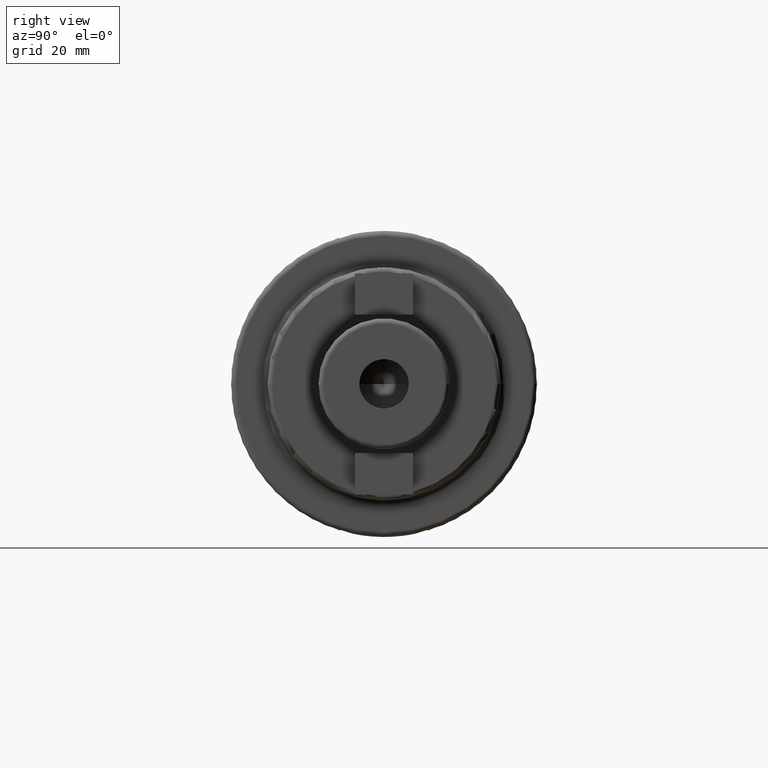
[diagram: clean part render]
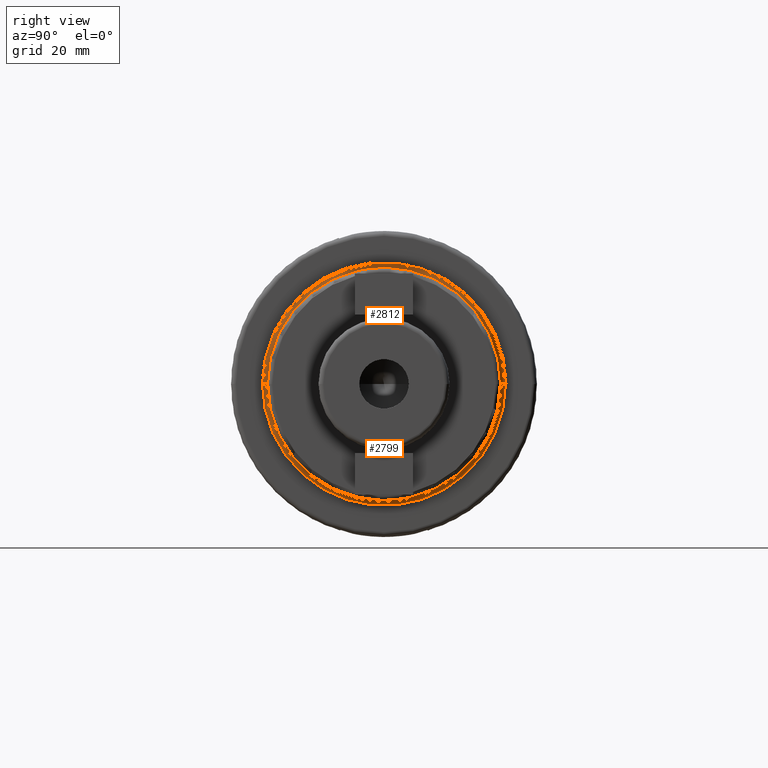
[diagram: same view with one multi-face feature highlighted, each face labeled with its STEP entity id]
A machine part, right view. The highlighted faces form ONE feature: a constant-radius fillet chain: 2 tangent blend faces with common blend radius 1 mm. The faces share edges in the B-rep.
Their STEP definitions:
[1] entity #2812 (Torus):
#841=CARTESIAN_POINT('',(2.7E1,0.E0,0.E0));
#842=DIRECTION('',(1.E0,0.E0,0.E0));
#843=DIRECTION('',(0.E0,1.E0,0.E0));
#844=AXIS2_PLACEMENT_3D('',#841,#842,#843);
#846=CARTESIAN_POINT('',(2.8E1,-2.5E1,1.590394482776E-14));
#847=DIRECTION('',(0.E0,0.E0,-1.E0));
#848=DIRECTION('',(-1.E0,4.973799150321E-14,0.E0));
#849=AXIS2_PLACEMENT_3D('',#846,#847,#848);
#851=CARTESIAN_POINT('',(2.8E1,2.5E1,-1.848521336001E-14));
#852=DIRECTION('',(0.E0,0.E0,1.E0));
#853=DIRECTION('',(-1.E0,-5.329070518201E-14,0.E0));
#854=AXIS2_PLACEMENT_3D('',#851,#852,#853);
#856=CARTESIAN_POINT('',(2.8E1,0.E0,0.E0));
#857=DIRECTION('',(1.E0,0.E0,0.E0));
#858=DIRECTION('',(0.E0,1.E0,0.E0));
#859=AXIS2_PLACEMENT_3D('',#856,#857,#858);
#1599=CARTESIAN_POINT('',(2.7E1,-2.5E1,0.E0));
#1600=CARTESIAN_POINT('',(2.7E1,2.5E1,0.E0));
#1601=VERTEX_POINT('',#1599);
#1602=VERTEX_POINT('',#1600);
#1603=CARTESIAN_POINT('',(2.8E1,-2.4E1,0.E0));
#1604=CARTESIAN_POINT('',(2.8E1,2.4E1,0.E0));
#1605=VERTEX_POINT('',#1603);
#1606=VERTEX_POINT('',#1604);
#2800=CARTESIAN_POINT('',(2.8E1,0.E0,0.E0));
#2801=DIRECTION('',(1.E0,0.E0,0.E0));
#2802=DIRECTION('',(0.E0,9.999794752457E-1,-6.406956165907E-3));
#2803=AXIS2_PLACEMENT_3D('',#2800,#2801,#2802);
#2804=TOROIDAL_SURFACE('',#2803,2.5E1,1.E0);
#2806=ORIENTED_EDGE('',*,*,#2805,.T.);
#2807=ORIENTED_EDGE('',*,*,#2791,.F.);
#2808=ORIENTED_EDGE('',*,*,#2780,.F.);
#2809=ORIENTED_EDGE('',*,*,#2795,.T.);
#2810=EDGE_LOOP('',(#2806,#2807,#2808,#2809));
#2811=FACE_OUTER_BOUND('',#2810,.F.);
#2812=ADVANCED_FACE('',(#2811),#2804,.F.);
#845=CIRCLE('',#844,2.5E1);
#850=CIRCLE('',#849,1.E0);
#855=CIRCLE('',#854,1.E0);
#860=CIRCLE('',#859,2.4E1);
#2780=EDGE_CURVE('',#1602,#1601,#845,.T.);
#2791=EDGE_CURVE('',#1601,#1605,#850,.T.);
#2795=EDGE_CURVE('',#1602,#1606,#855,.T.);
#2805=EDGE_CURVE('',#1606,#1605,#860,.T.);
[2] entity #2799 (Torus):
#836=CARTESIAN_POINT('',(2.7E1,0.E0,0.E0));
#837=DIRECTION('',(1.E0,0.E0,0.E0));
#838=DIRECTION('',(0.E0,-1.E0,0.E0));
#839=AXIS2_PLACEMENT_3D('',#836,#837,#838);
#846=CARTESIAN_POINT('',(2.8E1,-2.5E1,1.590394482776E-14));
#847=DIRECTION('',(0.E0,0.E0,-1.E0));
#848=DIRECTION('',(-1.E0,4.973799150321E-14,0.E0));
#849=AXIS2_PLACEMENT_3D('',#846,#847,#848);
#851=CARTESIAN_POINT('',(2.8E1,2.5E1,-1.848521336001E-14));
#852=DIRECTION('',(0.E0,0.E0,1.E0));
#853=DIRECTION('',(-1.E0,-5.329070518201E-14,0.E0));
#854=AXIS2_PLACEMENT_3D('',#851,#852,#853);
#879=CARTESIAN_POINT('',(2.8E1,0.E0,0.E0));
#880=DIRECTION('',(1.E0,0.E0,0.E0));
#881=DIRECTION('',(0.E0,-1.E0,0.E0));
#882=AXIS2_PLACEMENT_3D('',#879,#880,#881);
#1599=CARTESIAN_POINT('',(2.7E1,-2.5E1,0.E0));
#1600=CARTESIAN_POINT('',(2.7E1,2.5E1,0.E0));
#1601=VERTEX_POINT('',#1599);
#1602=VERTEX_POINT('',#1600);
#1603=CARTESIAN_POINT('',(2.8E1,-2.4E1,0.E0));
#1604=CARTESIAN_POINT('',(2.8E1,2.4E1,0.E0));
#1605=VERTEX_POINT('',#1603);
#1606=VERTEX_POINT('',#1604);
#2785=CARTESIAN_POINT('',(2.8E1,0.E0,0.E0));
#2786=DIRECTION('',(1.E0,0.E0,0.E0));
#2787=DIRECTION('',(0.E0,-9.999794752457E-1,6.406956165906E-3));
#2788=AXIS2_PLACEMENT_3D('',#2785,#2786,#2787);
#2789=TOROIDAL_SURFACE('',#2788,2.5E1,1.E0);
#2790=ORIENTED_EDGE('',*,*,#2778,.F.);
#2792=ORIENTED_EDGE('',*,*,#2791,.T.);
#2794=ORIENTED_EDGE('',*,*,#2793,.T.);
#2796=ORIENTED_EDGE('',*,*,#2795,.F.);
#2797=EDGE_LOOP('',(#2790,#2792,#2794,#2796));
#2798=FACE_OUTER_BOUND('',#2797,.F.);
#2799=ADVANCED_FACE('',(#2798),#2789,.F.);
#840=CIRCLE('',#839,2.5E1);
#850=CIRCLE('',#849,1.E0);
#855=CIRCLE('',#854,1.E0);
#883=CIRCLE('',#882,2.4E1);
#2778=EDGE_CURVE('',#1601,#1602,#840,.T.);
#2791=EDGE_CURVE('',#1601,#1605,#850,.T.);
#2793=EDGE_CURVE('',#1605,#1606,#883,.T.);
#2795=EDGE_CURVE('',#1602,#1606,#855,.T.);